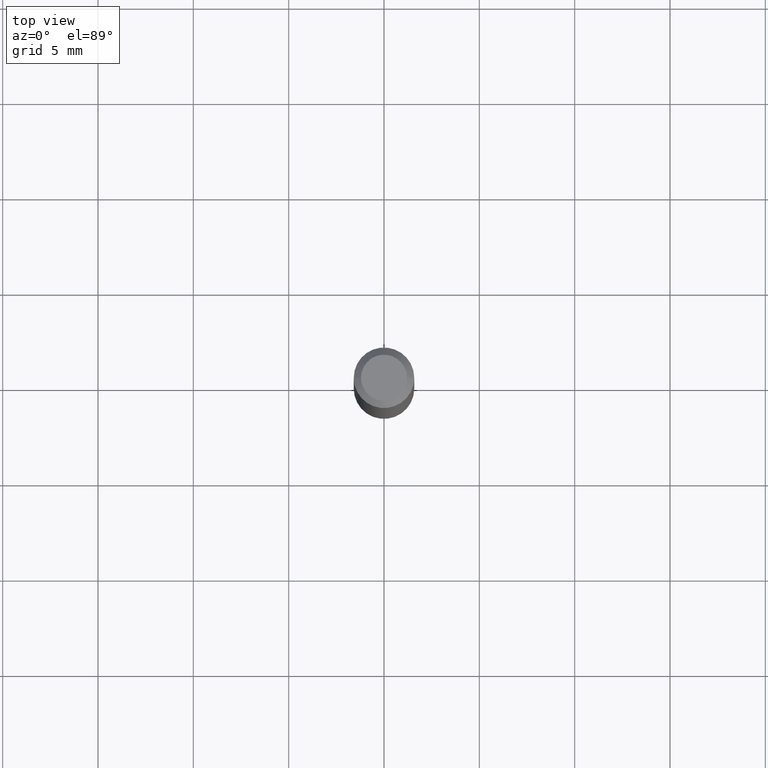
[diagram: clean part render]
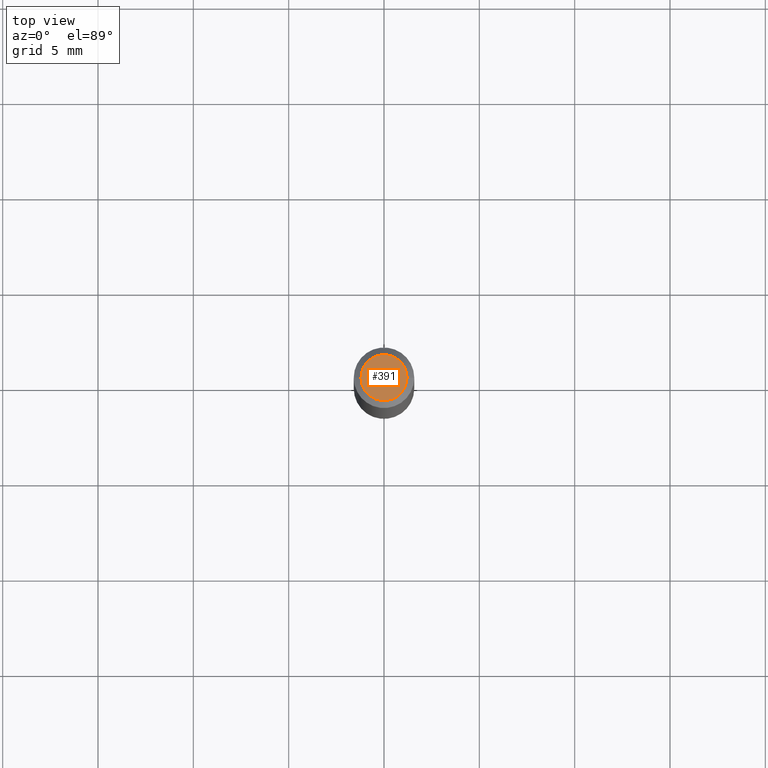
[diagram: same view with one face highlighted and labeled with its STEP entity id]
A machine part, top view. The second image highlights one B-rep face of the part: STEP entity #391.
In plain terms, the highlighted planar face has unit normal (0, -0, -1).
Its self-contained STEP definition (entity closure, byte-faithful):
#1 = ORIENTED_EDGE ( 'NONE', *, *, #471, .T. ) ;
#27 = DIRECTION ( 'NONE',  ( -2.445468806185136597E-29, 3.491481338843145583E-15, 1.000000000000000000 ) ) ;
#34 = AXIS2_PLACEMENT_3D ( 'NONE', #135, #453, #257 ) ;
#52 = CARTESIAN_POINT ( 'NONE',  ( 0.04750000000000000749, -4.035134999187568762E-16, 2.731847993664288856E-16 ) ) ;
#74 = DIRECTION ( 'NONE',  ( 2.438088387897960049E-29, -3.491481338843145188E-15, -1.000000000000000000 ) ) ;
#79 = ORIENTED_EDGE ( 'NONE', *, *, #381, .T. ) ;
#135 = CARTESIAN_POINT ( 'NONE',  ( -6.680649051745406845E-45, 9.538196290434862081E-31, 2.731847993664263218E-16 ) ) ;
#198 = DIRECTION ( 'NONE',  ( 1.000000000000000000, -6.982962677686266711E-15, 4.852736867747365086E-29 ) ) ;
#236 = PLANE ( 'NONE',  #500 ) ;
#257 = DIRECTION ( 'NONE',  ( 1.000000000000000000, -6.982962677686266711E-15, 4.852736867747365086E-29 ) ) ;
#270 = VERTEX_POINT ( 'NONE', #376 ) ;
#323 = AXIS2_PLACEMENT_3D ( 'NONE', #390, #27, #198 ) ;
#341 = CIRCLE ( 'NONE', #323, 0.04750000000000000749 ) ;
#366 = CIRCLE ( 'NONE', #34, 0.04750000000000000749 ) ;
#376 = CARTESIAN_POINT ( 'NONE',  ( -0.04750000000000000749, 3.578768372314221353E-16, 2.731847993664239060E-16 ) ) ;
#381 = EDGE_CURVE ( 'NONE', #270, #430, #341, .T. ) ;
#388 = EDGE_LOOP ( 'NONE', ( #79, #1 ) ) ;
#390 = CARTESIAN_POINT ( 'NONE',  ( -6.680649051745406845E-45, 9.538196290434862081E-31, 2.731847993664263218E-16 ) ) ;
#391 = ADVANCED_FACE ( 'NONE', ( #431 ), #236, .F. ) ;
#393 = CARTESIAN_POINT ( 'NONE',  ( 3.316907271900976589E-16, 0.04750000000000000749, -2.925296391183627249E-17 ) ) ;
#430 = VERTEX_POINT ( 'NONE', #52 ) ;
#431 = FACE_OUTER_BOUND ( 'NONE', #388, .T. ) ;
#453 = DIRECTION ( 'NONE',  ( -2.445468806185136597E-29, 3.491481338843145583E-15, 1.000000000000000000 ) ) ;
#471 = EDGE_CURVE ( 'NONE', #430, #270, #366, .T. ) ;
#500 = AXIS2_PLACEMENT_3D ( 'NONE', #393, #74, #514 ) ;
#514 = DIRECTION ( 'NONE',  ( -1.000000000000000000, 6.982962677686265922E-15, -4.876176775795935793E-29 ) ) ;